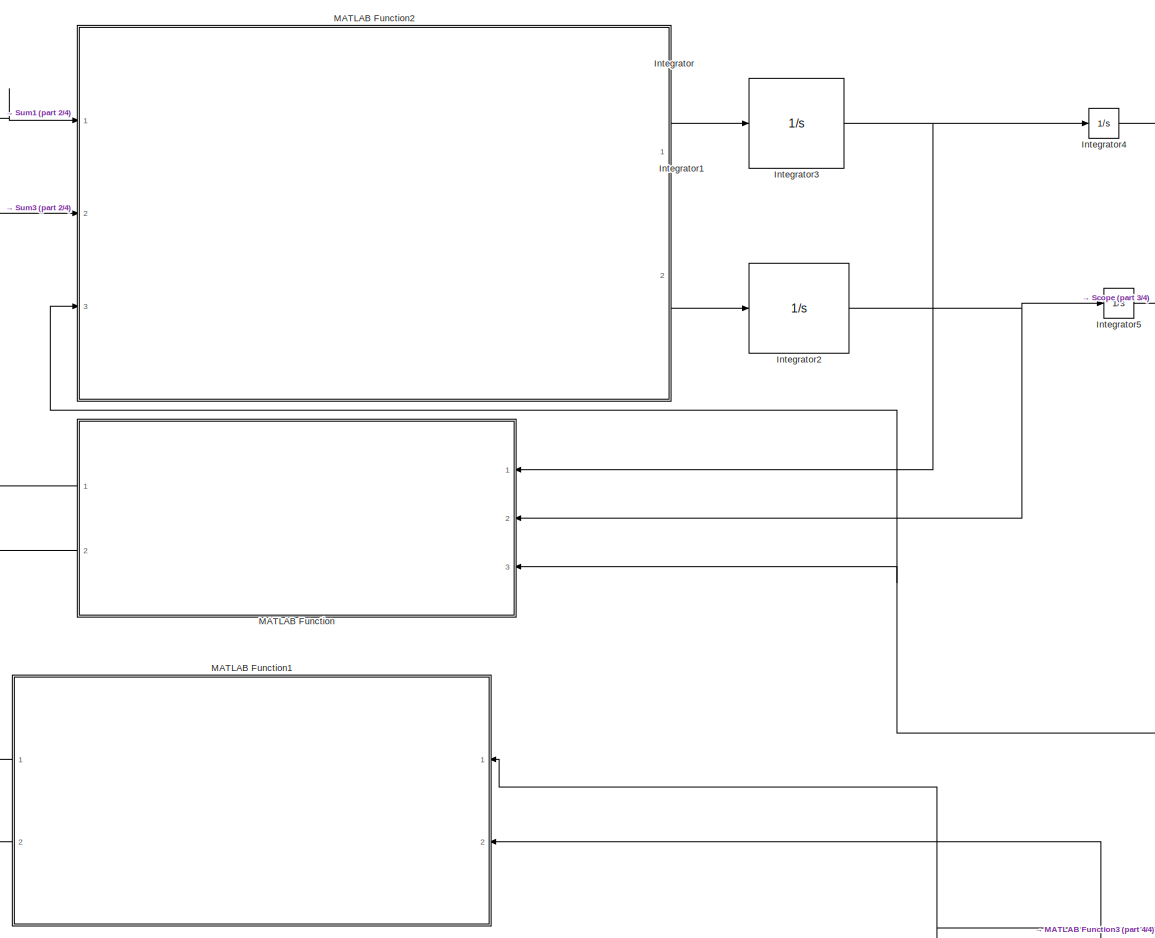
[diagram: root canvas - part 1/4, center side, full height]
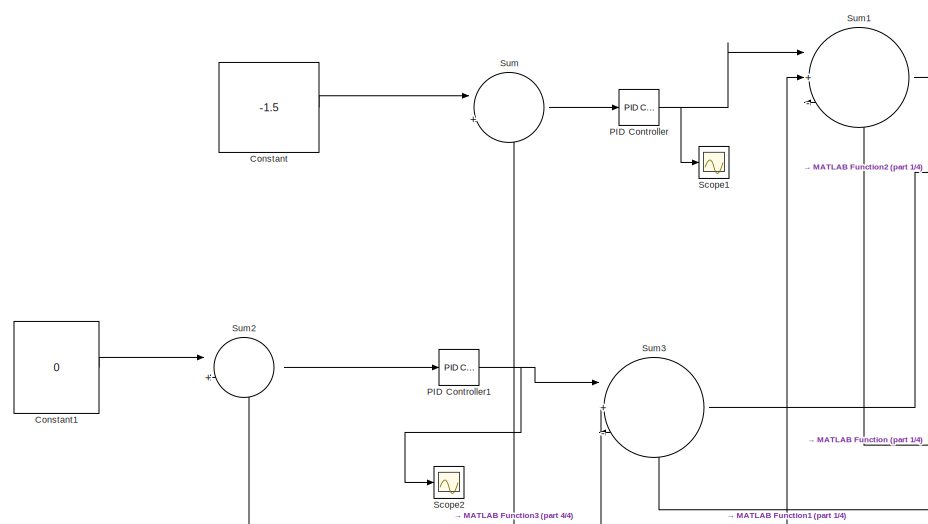
[diagram: root canvas - part 2/4, top left region]
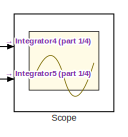
[diagram: root canvas - part 3/4, top right region]
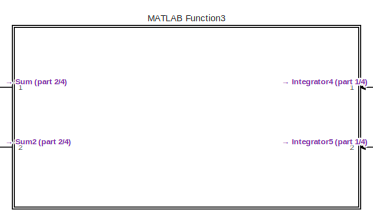
[diagram: root canvas - part 4/4, bottom center region]
MODEL slx_0a41d2eeeb32
KIND model
CONFIG AbsTol = auto
CONFIG EnableMultiTasking = off
CONFIG FixedStep = auto
CONFIG MaxStep = auto
CONFIG MinStep = auto
CONFIG RelTol = 1e-3
CONFIG SampleTimeConstraint = Unconstrained
CONFIG Solver = VariableStepAuto
CONFIG SolverName = VariableStepAuto
CONFIG StartTime = 0.0
CONFIG StopTime = 10.0
BLOCK [Constant] Constant
  Value = -1.5
BLOCK [Constant] Constant1
  Value = 0
BLOCK [Integrator] Integrator
  Ports = [1, 1]
BLOCK [Integrator] Integrator1
  Ports = [1, 1]
BLOCK [Integrator] Integrator2
  Ports = [1, 1]
BLOCK [Integrator] Integrator3
  Ports = [1, 1]
BLOCK [Integrator] Integrator4
  Ports = [1, 1]
BLOCK [Integrator] Integrator5
  Ports = [1, 1]
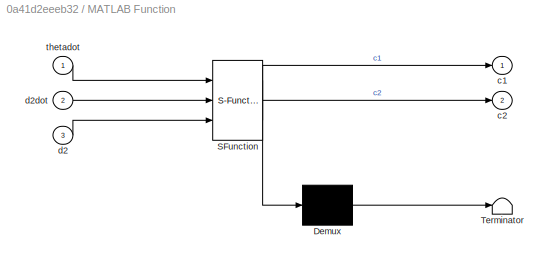
BLOCK [SubSystem] MATLAB Function
  ErrorFcn = Stateflow.Translate.translate
  PermitHierarchicalResolution = ExplicitOnly
  Ports = [3, 2]
  RequestExecContextInheritance = off
  SFBlockType = MATLAB Function
  TreatAsAtomicUnit = on
BLOCK [Demux] MATLAB Function/ Demux 
  Outputs = 1
  Ports = [1, 1]
BLOCK [S-Function] MATLAB Function/ SFunction 
  EnableBusSupport = on
  FunctionName = sf_sfun
  PortCounts = [3 3]
  Ports = [3, 3]
  SFcnIsStateOwnerBlock = off
  SFunctionDeploymentMode = off
  Tag = Stateflow S-Function Dynamics 2
BLOCK [Terminator] MATLAB Function/ Terminator 
BLOCK [Outport] MATLAB Function/c1
BLOCK [Outport] MATLAB Function/c2
  Port = 2
BLOCK [Inport] MATLAB Function/d2
  Port = 3
BLOCK [Inport] MATLAB Function/d2dot
  Port = 2
BLOCK [Inport] MATLAB Function/thetadot
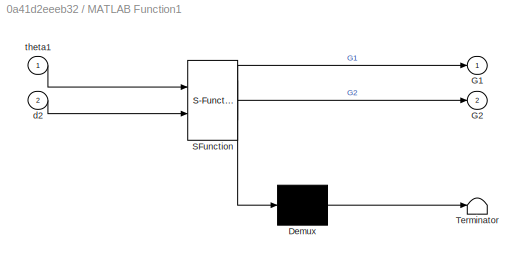
BLOCK [SubSystem] MATLAB Function1
  ErrorFcn = Stateflow.Translate.translate
  PermitHierarchicalResolution = ExplicitOnly
  Ports = [2, 2]
  RequestExecContextInheritance = off
  SFBlockType = MATLAB Function
  TreatAsAtomicUnit = on
BLOCK [Demux] MATLAB Function1/ Demux 
  Outputs = 1
  Ports = [1, 1]
BLOCK [S-Function] MATLAB Function1/ SFunction 
  EnableBusSupport = on
  FunctionName = sf_sfun
  PortCounts = [2 3]
  Ports = [2, 3]
  SFcnIsStateOwnerBlock = off
  SFunctionDeploymentMode = off
  Tag = Stateflow S-Function Dynamics 1
BLOCK [Terminator] MATLAB Function1/ Terminator 
BLOCK [Outport] MATLAB Function1/G1
BLOCK [Outport] MATLAB Function1/G2
  Port = 2
BLOCK [Inport] MATLAB Function1/d2
  Port = 2
BLOCK [Inport] MATLAB Function1/theta1
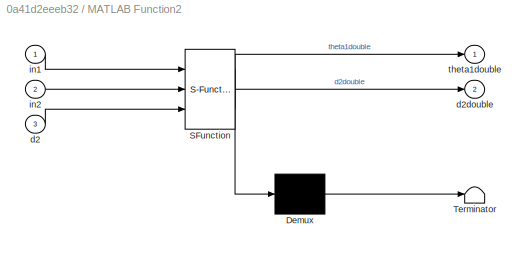
BLOCK [SubSystem] MATLAB Function2
  ErrorFcn = Stateflow.Translate.translate
  PermitHierarchicalResolution = ExplicitOnly
  Ports = [3, 2]
  RequestExecContextInheritance = off
  SFBlockType = MATLAB Function
  TreatAsAtomicUnit = on
BLOCK [Demux] MATLAB Function2/ Demux 
  Outputs = 1
  Ports = [1, 1]
BLOCK [S-Function] MATLAB Function2/ SFunction 
  EnableBusSupport = on
  FunctionName = sf_sfun
  PortCounts = [3 3]
  Ports = [3, 3]
  SFcnIsStateOwnerBlock = off
  SFunctionDeploymentMode = off
  Tag = Stateflow S-Function Dynamics 3
BLOCK [Terminator] MATLAB Function2/ Terminator 
BLOCK [Inport] MATLAB Function2/d2
  Port = 3
BLOCK [Outport] MATLAB Function2/d2double
  Port = 2
BLOCK [Inport] MATLAB Function2/in1
BLOCK [Inport] MATLAB Function2/in2
  Port = 2
BLOCK [Outport] MATLAB Function2/theta1double
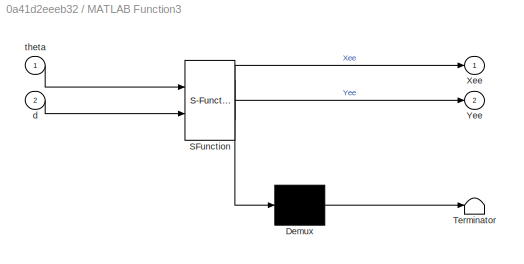
BLOCK [SubSystem] MATLAB Function3
  ErrorFcn = Stateflow.Translate.translate
  PermitHierarchicalResolution = ExplicitOnly
  Ports = [2, 2]
  RequestExecContextInheritance = off
  SFBlockType = MATLAB Function
  TreatAsAtomicUnit = on
BLOCK [Demux] MATLAB Function3/ Demux 
  Outputs = 1
  Ports = [1, 1]
BLOCK [S-Function] MATLAB Function3/ SFunction 
  EnableBusSupport = on
  FunctionName = sf_sfun
  PortCounts = [2 3]
  Ports = [2, 3]
  SFcnIsStateOwnerBlock = off
  SFunctionDeploymentMode = off
  Tag = Stateflow S-Function Dynamics 4
BLOCK [Terminator] MATLAB Function3/ Terminator 
BLOCK [Outport] MATLAB Function3/Xee
BLOCK [Outport] MATLAB Function3/Yee
  Port = 2
BLOCK [Inport] MATLAB Function3/d
  Port = 2
BLOCK [Inport] MATLAB Function3/theta
BLOCK [Reference] PID Controller  REF=simulink/Continuous/PID Controller
  Ports = [1, 1]
  SourceBlock = simulink/Continuous/PID Controller
  SourceProductBaseCode = SL
  SourceType = PID 1dof
BLOCK [Reference] PID Controller1  REF=simulink/Continuous/PID Controller
  Ports = [1, 1]
  SourceBlock = simulink/Continuous/PID Controller
  SourceProductBaseCode = SL
  SourceType = PID 1dof
BLOCK [Scope] Scope
  Floating = off
  NumInputPorts = 2
  Ports = [2]
  ScopeSpecificationString = Simulink.scopes.TimeScopeBlockCfg('CurrentConfiguration', extmgr.ConfigurationSet(extmgr.Configuration('Core','General UI',true),extmgr.Configuration('Core','Source UI',true),extmgr.Configuration('Sources','WiredSimulink',true),extmgr.Configuration('Visuals','Time Domain',true,'SerializedDisplays',{struct('MinYLimReal','-1361.26861','MaxYLimReal','12221.18919','YLabelReal','','MinYLimMag','  0.000...<+1371ch>
BLOCK [Scope] Scope1
  Floating = off
  NumInputPorts = 1
  Ports = [1]
  ScopeSpecificationString = Simulink.scopes.TimeScopeBlockCfg('CurrentConfiguration', extmgr.ConfigurationSet(extmgr.Configuration('Core','General UI',true),extmgr.Configuration('Core','Source UI',true),extmgr.Configuration('Sources','WiredSimulink',true,'DataLoggingVariableName','ScopeData1'),extmgr.Configuration('Visuals','Time Domain',true,'SerializedDisplays',{struct('MinYLimReal','-27175.89357','MaxYLimReal','3017.32151...<+1430ch>
BLOCK [Scope] Scope2
  Floating = off
  NumInputPorts = 1
  Ports = [1]
  ScopeSpecificationString = Simulink.scopes.TimeScopeBlockCfg('CurrentConfiguration', extmgr.ConfigurationSet(extmgr.Configuration('Core','General UI',true),extmgr.Configuration('Core','Source UI',true),extmgr.Configuration('Sources','WiredSimulink',true,'DataLoggingVariableName','ScopeData2'),extmgr.Configuration('Visuals','Time Domain',true,'SerializedDisplays',{struct('MinYLimReal','-159.07812','MaxYLimReal','1431.70305',...<+1421ch>
BLOCK [Sum] Sum
  Inputs = |+-
  Ports = [2, 1]
BLOCK [Sum] Sum1
  Inputs = |+--
  Ports = [3, 1]
BLOCK [Sum] Sum2
  Inputs = |+-
  Ports = [2, 1]
BLOCK [Sum] Sum3
  Inputs = |+--
  Ports = [3, 1]
LINE Constant1:1 -> Sum2:1
LINE Constant:1 -> Sum:1
NET Integrator2:1 -> Integrator5:1, MATLAB Function:2
NET Integrator3:1 -> Integrator4:1, MATLAB Function:1
NET Integrator4:1 -> MATLAB Function1:1, MATLAB Function3:1, Scope:1
NET Integrator5:1 -> MATLAB Function1:2, MATLAB Function2:3, MATLAB Function3:2, MATLAB Function:3, Scope:2
LINE MATLAB Function1:1 -> Sum1:2
LINE MATLAB Function1:2 -> Sum3:2
LINE MATLAB Function2:1 -> Integrator3:1
LINE MATLAB Function2:2 -> Integrator2:1
LINE MATLAB Function3:1 -> Sum:2
LINE MATLAB Function3:2 -> Sum2:2
LINE MATLAB Function:1 -> Sum1:3
LINE MATLAB Function:2 -> Sum3:3
NET PID Controller1:1 -> Scope2:1, Sum3:1
NET PID Controller:1 -> Scope1:1, Sum1:1
LINE Sum1:1 -> MATLAB Function2:1
LINE Sum2:1 -> PID Controller1:1
LINE Sum3:1 -> MATLAB Function2:2
LINE Sum:1 -> PID Controller:1
note: NET lines group one-source signal fan-out (src -> all destinations, sorted); 1:1 wires keep LINE
CHART MATLAB Function1 states=1 transitions=1
  STATE_LABEL 'eML_blk_kernel()'
  STATE_LABEL 'SCRIPT:\nfunction [G1,G2] = fcn_Gravational_Forces(theta1,d2)\nm1 =  0.3;\nm2 = 0.7;\nL1 = 1;\ng = 9.8;\n\nG = [((-(m1 * L1 * g)/2)+(m2 * g )*( L1+(d2/2)))*cosd(theta1);((m2*g)/2)*sind(theta1)];\n\nG1 = G (1);\nG2 = G (2);\n\nend\n'
CHART MATLAB Function states=1 transitions=1
  STATE_LABEL 'eML_blk_kernel()'
  STATE_LABEL 'SCRIPT:\nfunction [c1,c2] = fcn_Cetrifugal_Forces(thetadot,d2dot,d2)\nm2= 0.7;\nL1=1;\nCO = ([0 0;-(m2/2)*(L1+(d2/2)) 0]*[thetadot^2;d2dot^2]);\nCET = ([(2*m2)*(L1+(d2/2)); 0]*[thetadot*d2dot]);\nCE = CO + CET ;\nc1 = CE (1);\nc2 = CE (2);\n\nend\n'
CHART MATLAB Function2 states=1 transitions=1
  STATE_LABEL 'eML_blk_kernel()'
  STATE_LABEL 'SCRIPT:\nfunction [theta1double,d2double] = fcn_Inertia(in1,in2,d2)\n\na2 = 0.3;\nb1 = 0.04;\nb2 = 0.04;\nm1 = 0.3;\nm2= 0.7;\nL1=1;\nIz1=(1/2)*0.3*((a2^2)+(b1^2));\nIz2=(1/2)*0.7*((a2^2)+(b2^2));\nMI=[((m1*L1^2)/4)+Iz1+m2*((L1+(d2/2)^2))+Iz2 0;0 (m2/4)];\nDots2 = inv(MI)*[in1;in2];\ntheta1double = Dots2(1);\nd2double = Dots2(2);\n\nend\n'
CHART MATLAB Function3 states=1 transitions=1
  STATE_LABEL 'eML_blk_kernel()'
  STATE_LABEL 'SCRIPT:\nfunction [Xee,Yee] = RP_position_forward_kinematics(theta,d)\nL1=0.5;\n\n  Xee = (L1+d)*cosd(theta);\n  Yee = (L1+d)*sind(theta);\n  \nend\n'
